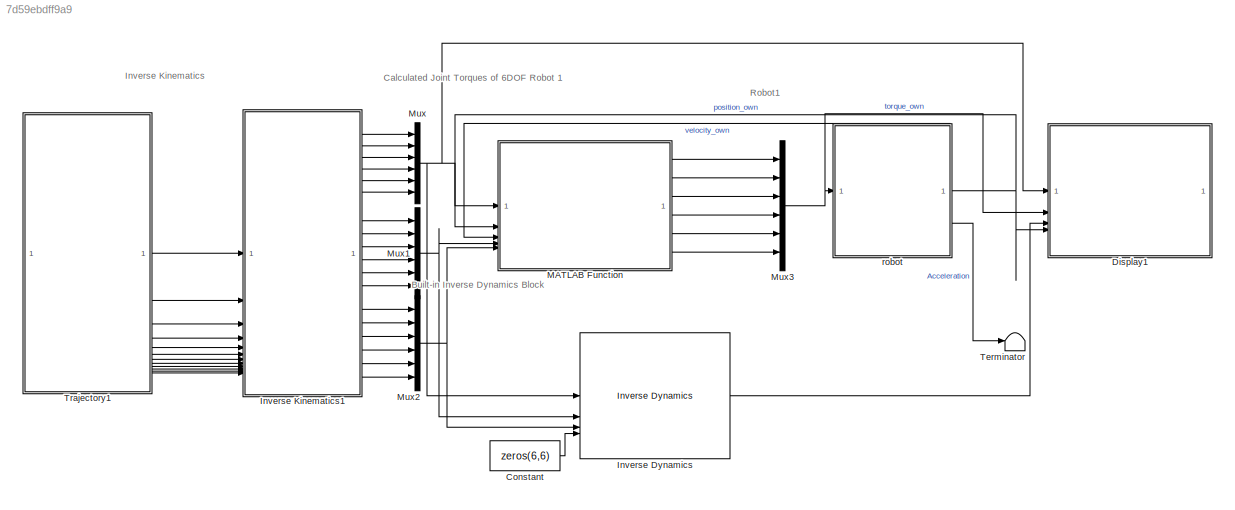
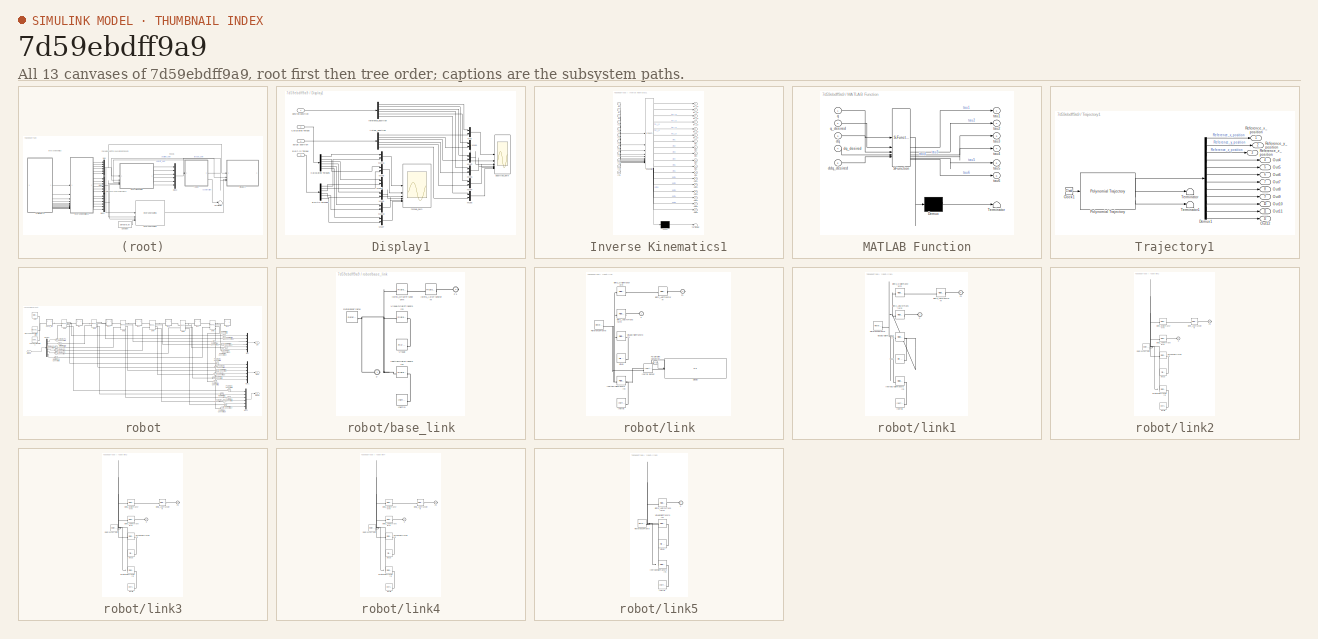
[diagram: thumbnail index - all 13 canvases of the model, root first then tree order]
MODEL slx_7d59ebdff9a9
KIND model
CONFIG AbsTol = auto
CONFIG EnableMultiTasking = off
CONFIG FixedStep = auto
CONFIG MaxStep = auto
CONFIG MinStep = auto
CONFIG RelTol = 1e-5
CONFIG SampleTimeConstraint = Unconstrained
CONFIG SolverName = VariableStepAuto
CONFIG StartTime = 0.0
CONFIG StopTime = 10.0
BLOCK [Constant] Constant
  Value = zeros(6,6)
BLOCK [SubSystem] Display1
BLOCK [Demux] Display1/Actual_position
  Outputs = 6
BLOCK [Inport] Display1/Built-in Torque
  Port = 3
BLOCK [Demux] Display1/Bulitin Torques
  Outputs = 6
BLOCK [Inport] Display1/Calculated Torque
  Port = 2
BLOCK [Demux] Display1/Calculated Torques
  Outputs = 6
BLOCK [Mux] Display1/Mux
  DisplayOption = bar
  Inputs = 2
BLOCK [Mux] Display1/Mux1
  DisplayOption = bar
  Inputs = 2
BLOCK [Mux] Display1/Mux10
  DisplayOption = bar
  Inputs = 2
BLOCK [Mux] Display1/Mux11
  DisplayOption = bar
  Inputs = 2
BLOCK [Mux] Display1/Mux2
  DisplayOption = bar
  Inputs = 2
BLOCK [Mux] Display1/Mux3
  DisplayOption = bar
  Inputs = 2
BLOCK [Mux] Display1/Mux4
  DisplayOption = bar
  Inputs = 2
BLOCK [Mux] Display1/Mux5
  DisplayOption = bar
  Inputs = 2
BLOCK [Mux] Display1/Mux6
  DisplayOption = bar
  Inputs = 2
BLOCK [Mux] Display1/Mux7
  DisplayOption = bar
  Inputs = 2
BLOCK [Mux] Display1/Mux8
  DisplayOption = bar
  Inputs = 2
BLOCK [Mux] Display1/Mux9
  DisplayOption = bar
  Inputs = 2
BLOCK [Inport] Display1/actual position
  Port = 4
BLOCK [Inport] Display1/desired position
BLOCK [Scope] Display1/position_own
  Floating = off
  NumInputPorts = 6
  ScopeSpecificationString = Simulink.scopes.TimeScopeBlockCfg('CurrentConfiguration', extmgr.ConfigurationSet(extmgr.Configuration('Core','General UI',true,'FigureColor',[1 1 1]),extmgr.Configuration('Core','Source UI',true),extmgr.Configuration('Sources','WiredSimulink',true,'DataLoggingVariableName','ScopeData1'),extmgr.Configuration('Visuals','Time Domain',true,'SerializedDisplays',{struct('MinYLimReal','-0.48797','MaxYLi...<+6614ch>
BLOCK [Demux] Display1/reference_position
  Outputs = 6
BLOCK [Scope] Display1/torque_own
  Floating = off
  NumInputPorts = 6
  ScopeSpecificationString = Simulink.scopes.TimeScopeBlockCfg('CurrentConfiguration', extmgr.ConfigurationSet(extmgr.Configuration('Core','General UI',true,'FigureColor',[1 1 1]),extmgr.Configuration('Core','Source UI',true),extmgr.Configuration('Sources','WiredSimulink',true),extmgr.Configuration('Visuals','Time Domain',true,'SerializedDisplays',{struct('MinYLimReal','-11.94277','MaxYLimReal','15.29591','YLabelReal','','Min...<+6554ch>
BLOCK [Reference] Inverse Dynamics  REF=robotmaniplib/Inverse Dynamics
  SourceBlock = robotmaniplib/Inverse Dynamics
  SourceType = Inverse Dynamics
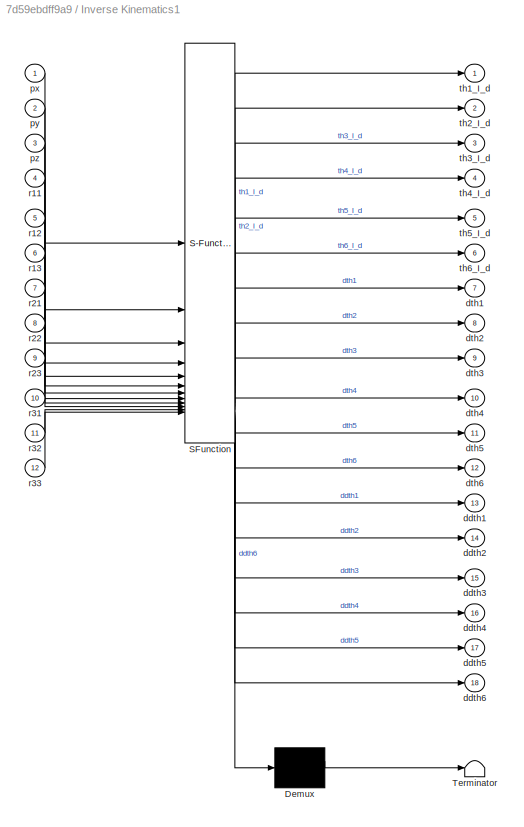
BLOCK [SubSystem] Inverse Kinematics1
  ErrorFcn = Stateflow.Translate.translate
  PermitHierarchicalResolution = ExplicitOnly
  SFBlockType = MATLAB Function
  TreatAsAtomicUnit = on
BLOCK [Demux] Inverse Kinematics1/ Demux 
  Outputs = 1
BLOCK [S-Function] Inverse Kinematics1/ SFunction 
  EnableBusSupport = off
  FunctionName = sf_sfun
  PortCounts = [12 19]
  SFcnIsStateOwnerBlock = off
  SFunctionDeploymentMode = off
  Tag = Stateflow S-Function 1
BLOCK [Terminator] Inverse Kinematics1/ Terminator 
BLOCK [Outport] Inverse Kinematics1/ddth1
  Port = 13
BLOCK [Outport] Inverse Kinematics1/ddth2
  Port = 14
BLOCK [Outport] Inverse Kinematics1/ddth3
  Port = 15
BLOCK [Outport] Inverse Kinematics1/ddth4
  Port = 16
BLOCK [Outport] Inverse Kinematics1/ddth5
  Port = 17
BLOCK [Outport] Inverse Kinematics1/ddth6
  Port = 18
BLOCK [Outport] Inverse Kinematics1/dth1
  Port = 7
BLOCK [Outport] Inverse Kinematics1/dth2
  Port = 8
BLOCK [Outport] Inverse Kinematics1/dth3
  Port = 9
BLOCK [Outport] Inverse Kinematics1/dth4
  Port = 10
BLOCK [Outport] Inverse Kinematics1/dth5
  Port = 11
BLOCK [Outport] Inverse Kinematics1/dth6
  Port = 12
BLOCK [Inport] Inverse Kinematics1/px
BLOCK [Inport] Inverse Kinematics1/py
  Port = 2
BLOCK [Inport] Inverse Kinematics1/pz
  Port = 3
BLOCK [Inport] Inverse Kinematics1/r11
  Port = 4
BLOCK [Inport] Inverse Kinematics1/r12
  Port = 5
BLOCK [Inport] Inverse Kinematics1/r13
  Port = 6
BLOCK [Inport] Inverse Kinematics1/r21
  Port = 7
BLOCK [Inport] Inverse Kinematics1/r22
  Port = 8
BLOCK [Inport] Inverse Kinematics1/r23
  Port = 9
BLOCK [Inport] Inverse Kinematics1/r31
  Port = 10
BLOCK [Inport] Inverse Kinematics1/r32
  Port = 11
BLOCK [Inport] Inverse Kinematics1/r33
  Port = 12
BLOCK [Outport] Inverse Kinematics1/th1_I_d
BLOCK [Outport] Inverse Kinematics1/th2_I_d
  Port = 2
BLOCK [Outport] Inverse Kinematics1/th3_I_d
  Port = 3
BLOCK [Outport] Inverse Kinematics1/th4_I_d
  Port = 4
BLOCK [Outport] Inverse Kinematics1/th5_I_d
  Port = 5
BLOCK [Outport] Inverse Kinematics1/th6_I_d
  Port = 6
BLOCK [SubSystem] MATLAB Function
  ErrorFcn = Stateflow.Translate.translate
  PermitHierarchicalResolution = ExplicitOnly
  SFBlockType = MATLAB Function
  TreatAsAtomicUnit = on
BLOCK [Demux] MATLAB Function/ Demux 
  Outputs = 1
BLOCK [S-Function] MATLAB Function/ SFunction 
  EnableBusSupport = off
  FunctionName = sf_sfun
  PortCounts = [5 7]
  SFcnIsStateOwnerBlock = off
  SFunctionDeploymentMode = off
  Tag = Stateflow S-Function 9
BLOCK [Terminator] MATLAB Function/ Terminator 
BLOCK [Inport] MATLAB Function/ddq_desired
  Port = 5
BLOCK [Inport] MATLAB Function/dq
  Port = 3
BLOCK [Inport] MATLAB Function/dq_desired
  Port = 4
BLOCK [Inport] MATLAB Function/q
BLOCK [Inport] MATLAB Function/q_desired
  Port = 2
BLOCK [Outport] MATLAB Function/tau1
BLOCK [Outport] MATLAB Function/tau2
  Port = 2
BLOCK [Outport] MATLAB Function/tau3
  Port = 3
BLOCK [Outport] MATLAB Function/tau4
  Port = 4
BLOCK [Outport] MATLAB Function/tau5
  Port = 5
BLOCK [Outport] MATLAB Function/tau6
  Port = 6
BLOCK [Mux] Mux
  DisplayOption = bar
  Inputs = 6
BLOCK [Mux] Mux1
  DisplayOption = bar
  Inputs = 6
BLOCK [Mux] Mux2
  DisplayOption = bar
  Inputs = 6
BLOCK [Mux] Mux3
  DisplayOption = bar
  Inputs = 6
BLOCK [Terminator] Terminator
BLOCK [SubSystem] Trajectory1
BLOCK [Clock] Trajectory1/Clock1
  Decimation = 14
BLOCK [Demux] Trajectory1/Demux1
  Outputs = 12
BLOCK [Outport] Trajectory1/Out10
  Port = 10
BLOCK [Outport] Trajectory1/Out11
  Port = 11
BLOCK [Outport] Trajectory1/Out12
  Port = 12
BLOCK [Outport] Trajectory1/Out4
  Port = 4
BLOCK [Outport] Trajectory1/Out5
  Port = 5
BLOCK [Outport] Trajectory1/Out6
  Port = 6
BLOCK [Outport] Trajectory1/Out7
  Port = 7
BLOCK [Outport] Trajectory1/Out8
  Port = 8
BLOCK [Outport] Trajectory1/Out9
  Port = 9
BLOCK [Reference] Trajectory1/Polynomial Trajectory  REF=robotcorelib/Polynomial Trajectory
  SourceBlock = robotcorelib/Polynomial Trajectory
  SourceType = robotics.slcore.internal.block.PolyTrajSys
BLOCK [Outport] Trajectory1/Reference_x_position
BLOCK [Outport] Trajectory1/Reference_y_position
  Port = 2
BLOCK [Outport] Trajectory1/Reference_z_position
  Port = 3
BLOCK [Terminator] Trajectory1/Terminator
BLOCK [Terminator] Trajectory1/Terminator1
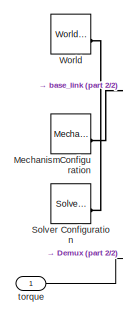
[diagram: robot - part 1/2, top left region]
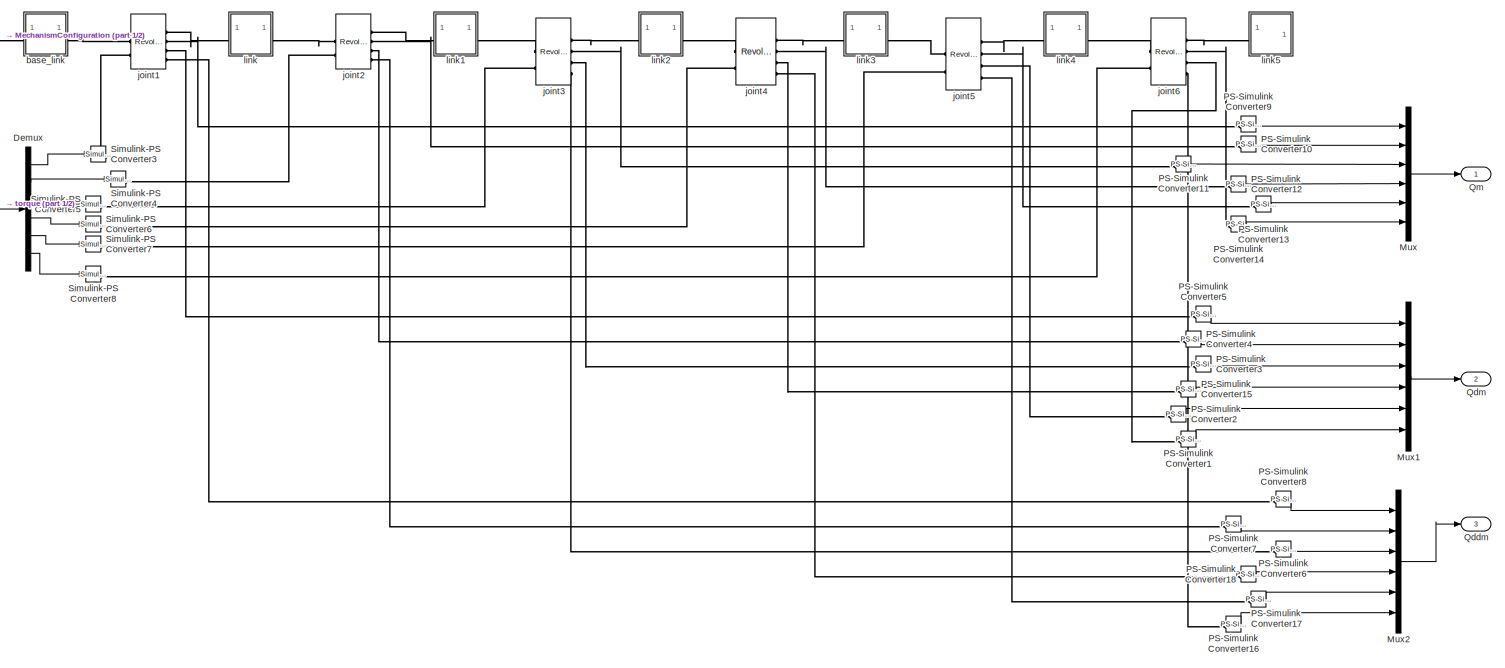
[diagram: robot - part 2/2, most of the canvas]
BLOCK [SubSystem] robot
BLOCK [Demux] robot/Demux
  Outputs = 6
BLOCK [Reference] robot/MechanismConfiguration  REF=sm_lib/Utilities/Mechanism
Configuration
  SourceBlock = sm_lib/Utilities/Mechanism\nConfiguration
  SourceType = Mechanism\nConfiguration
BLOCK [Mux] robot/Mux
  DisplayOption = bar
  Inputs = 6
BLOCK [Mux] robot/Mux1
  DisplayOption = bar
  Inputs = 6
BLOCK [Mux] robot/Mux2
  DisplayOption = bar
  Inputs = 6
BLOCK [Reference] robot/PS-Simulink Converter1  REF=nesl_utility/PS-Simulink
Converter
  SourceBlock = nesl_utility/PS-Simulink\nConverter
  SourceType = PS-Simulink\nConverter
BLOCK [Reference] robot/PS-Simulink Converter10  REF=nesl_utility/PS-Simulink
Converter
  SourceBlock = nesl_utility/PS-Simulink\nConverter
  SourceType = PS-Simulink\nConverter
BLOCK [Reference] robot/PS-Simulink Converter11  REF=nesl_utility/PS-Simulink
Converter
  SourceBlock = nesl_utility/PS-Simulink\nConverter
  SourceType = PS-Simulink\nConverter
BLOCK [Reference] robot/PS-Simulink Converter12  REF=nesl_utility/PS-Simulink
Converter
  SourceBlock = nesl_utility/PS-Simulink\nConverter
  SourceType = PS-Simulink\nConverter
BLOCK [Reference] robot/PS-Simulink Converter13  REF=nesl_utility/PS-Simulink
Converter
  SourceBlock = nesl_utility/PS-Simulink\nConverter
  SourceType = PS-Simulink\nConverter
BLOCK [Reference] robot/PS-Simulink Converter14  REF=nesl_utility/PS-Simulink
Converter
  SourceBlock = nesl_utility/PS-Simulink\nConverter
  SourceType = PS-Simulink\nConverter
BLOCK [Reference] robot/PS-Simulink Converter15  REF=nesl_utility/PS-Simulink
Converter
  SourceBlock = nesl_utility/PS-Simulink\nConverter
  SourceType = PS-Simulink\nConverter
BLOCK [Reference] robot/PS-Simulink Converter16  REF=nesl_utility/PS-Simulink
Converter
  SourceBlock = nesl_utility/PS-Simulink\nConverter
  SourceType = PS-Simulink\nConverter
BLOCK [Reference] robot/PS-Simulink Converter17  REF=nesl_utility/PS-Simulink
Converter
  SourceBlock = nesl_utility/PS-Simulink\nConverter
  SourceType = PS-Simulink\nConverter
BLOCK [Reference] robot/PS-Simulink Converter18  REF=nesl_utility/PS-Simulink
Converter
  SourceBlock = nesl_utility/PS-Simulink\nConverter
  SourceType = PS-Simulink\nConverter
BLOCK [Reference] robot/PS-Simulink Converter2  REF=nesl_utility/PS-Simulink
Converter
  SourceBlock = nesl_utility/PS-Simulink\nConverter
  SourceType = PS-Simulink\nConverter
BLOCK [Reference] robot/PS-Simulink Converter3  REF=nesl_utility/PS-Simulink
Converter
  SourceBlock = nesl_utility/PS-Simulink\nConverter
  SourceType = PS-Simulink\nConverter
BLOCK [Reference] robot/PS-Simulink Converter4  REF=nesl_utility/PS-Simulink
Converter
  SourceBlock = nesl_utility/PS-Simulink\nConverter
  SourceType = PS-Simulink\nConverter
BLOCK [Reference] robot/PS-Simulink Converter5  REF=nesl_utility/PS-Simulink
Converter
  SourceBlock = nesl_utility/PS-Simulink\nConverter
  SourceType = PS-Simulink\nConverter
BLOCK [Reference] robot/PS-Simulink Converter6  REF=nesl_utility/PS-Simulink
Converter
  SourceBlock = nesl_utility/PS-Simulink\nConverter
  SourceType = PS-Simulink\nConverter
BLOCK [Reference] robot/PS-Simulink Converter7  REF=nesl_utility/PS-Simulink
Converter
  SourceBlock = nesl_utility/PS-Simulink\nConverter
  SourceType = PS-Simulink\nConverter
BLOCK [Reference] robot/PS-Simulink Converter8  REF=nesl_utility/PS-Simulink
Converter
  SourceBlock = nesl_utility/PS-Simulink\nConverter
  SourceType = PS-Simulink\nConverter
BLOCK [Reference] robot/PS-Simulink Converter9  REF=nesl_utility/PS-Simulink
Converter
  SourceBlock = nesl_utility/PS-Simulink\nConverter
  SourceType = PS-Simulink\nConverter
BLOCK [Outport] robot/Qddm
  Port = 3
BLOCK [Outport] robot/Qdm
  Port = 2
BLOCK [Outport] robot/Qm
BLOCK [Reference] robot/Simulink-PS Converter3  REF=nesl_utility/Simulink-PS
Converter
  SourceBlock = nesl_utility/Simulink-PS\nConverter
  SourceType = Simulink-PS\nConverter
BLOCK [Reference] robot/Simulink-PS Converter4  REF=nesl_utility/Simulink-PS
Converter
  SourceBlock = nesl_utility/Simulink-PS\nConverter
  SourceType = Simulink-PS\nConverter
BLOCK [Reference] robot/Simulink-PS Converter5  REF=nesl_utility/Simulink-PS
Converter
  SourceBlock = nesl_utility/Simulink-PS\nConverter
  SourceType = Simulink-PS\nConverter
BLOCK [Reference] robot/Simulink-PS Converter6  REF=nesl_utility/Simulink-PS
Converter
  SourceBlock = nesl_utility/Simulink-PS\nConverter
  SourceType = Simulink-PS\nConverter
BLOCK [Reference] robot/Simulink-PS Converter7  REF=nesl_utility/Simulink-PS
Converter
  SourceBlock = nesl_utility/Simulink-PS\nConverter
  SourceType = Simulink-PS\nConverter
BLOCK [Reference] robot/Simulink-PS Converter8  REF=nesl_utility/Simulink-PS
Converter
  SourceBlock = nesl_utility/Simulink-PS\nConverter
  SourceType = Simulink-PS\nConverter
BLOCK [Reference] robot/Solver Configuration  REF=nesl_utility/Solver
Configuration
  SourceBlock = nesl_utility/Solver\nConfiguration
  SourceType = Solver\nConfiguration
BLOCK [Reference] robot/World  REF=sm_lib/Frames and
Transforms/World Frame
  SourceBlock = sm_lib/Frames and\nTransforms/World Frame
  SourceType = World Frame
BLOCK [SubSystem] robot/base_link
BLOCK [PMIOPort] robot/base_link/F
  Side = Left
BLOCK [PMIOPort] robot/base_link/F1
  Port = 2
  Side = Right
BLOCK [Reference] robot/base_link/Inertia  REF=sm_lib/Body Elements/Inertia
  SourceBlock = sm_lib/Body Elements/Inertia
  SourceType = Inertia
BLOCK [Reference] robot/base_link/InertiaOriginTransform  REF=sm_lib/Frames and
Transforms/Rigid
Transform
  SourceBlock = sm_lib/Frames and\nTransforms/Rigid\nTransform
  SourceType = Rigid\nTransform
BLOCK [Reference] robot/base_link/ReferenceFrame  REF=sm_lib/Frames and
Transforms/Reference
Frame
  SourceBlock = sm_lib/Frames and\nTransforms/Reference\nFrame
  SourceType = Reference\nFrame
BLOCK [Reference] robot/base_link/Visual  REF=sm_lib/Body Elements/File Solid
  SourceBlock = sm_lib/Body Elements/File Solid
  SourceType = File Solid
BLOCK [Reference] robot/base_link/VisualOriginTransform  REF=sm_lib/Frames and
Transforms/Rigid
Transform
  SourceBlock = sm_lib/Frames and\nTransforms/Rigid\nTransform
  SourceType = Rigid\nTransform
BLOCK [Reference] robot/base_link/joint1_AxisTransform  REF=sm_lib/Frames and
Transforms/Rigid
Transform
  SourceBlock = sm_lib/Frames and\nTransforms/Rigid\nTransform
  SourceType = Rigid\nTransform
BLOCK [Reference] robot/base_link/joint1_OriginTransform  REF=sm_lib/Frames and
Transforms/Rigid
Transform
  SourceBlock = sm_lib/Frames and\nTransforms/Rigid\nTransform
  SourceType = Rigid\nTransform
BLOCK [Reference] robot/joint1  REF=sm_lib/Joints/Revolute Joint
  SourceBlock = sm_lib/Joints/Revolute Joint
  SourceType = Revolute Joint
BLOCK [Reference] robot/joint2  REF=sm_lib/Joints/Revolute Joint
  SourceBlock = sm_lib/Joints/Revolute Joint
  SourceType = Revolute Joint
BLOCK [Reference] robot/joint3  REF=sm_lib/Joints/Revolute Joint
  SourceBlock = sm_lib/Joints/Revolute Joint
  SourceType = Revolute Joint
BLOCK [Reference] robot/joint4  REF=sm_lib/Joints/Revolute Joint
  SourceBlock = sm_lib/Joints/Revolute Joint
  SourceType = Revolute Joint
BLOCK [Reference] robot/joint5  REF=sm_lib/Joints/Revolute Joint
  SourceBlock = sm_lib/Joints/Revolute Joint
  SourceType = Revolute Joint
BLOCK [Reference] robot/joint6  REF=sm_lib/Joints/Revolute Joint
  SourceBlock = sm_lib/Joints/Revolute Joint
  SourceType = Revolute Joint
BLOCK [SubSystem] robot/link
BLOCK [Display] robot/link/Display
  Decimation = 1
BLOCK [PMIOPort] robot/link/F
  Side = Left
BLOCK [PMIOPort] robot/link/F1
  Port = 2
  Side = Right
BLOCK [Reference] robot/link/Inertia  REF=sm_lib/Body Elements/Inertia
  SourceBlock = sm_lib/Body Elements/Inertia
  SourceType = Inertia
BLOCK [Reference] robot/link/Inertia Sensor  REF=sm_lib/Body Elements/Inertia Sensor
  SourceBlock = sm_lib/Body Elements/Inertia Sensor
  SourceType = Inertia Sensor
BLOCK [Reference] robot/link/InertiaOriginTransform  REF=sm_lib/Frames and
Transforms/Rigid
Transform
  SourceBlock = sm_lib/Frames and\nTransforms/Rigid\nTransform
  SourceType = Rigid\nTransform
BLOCK [Reference] robot/link/PS-Simulink Converter  REF=nesl_utility/PS-Simulink
Converter
  SourceBlock = nesl_utility/PS-Simulink\nConverter
  SourceType = PS-Simulink\nConverter
BLOCK [Reference] robot/link/ReferenceFrame  REF=sm_lib/Frames and
Transforms/Reference
Frame
  SourceBlock = sm_lib/Frames and\nTransforms/Reference\nFrame
  SourceType = Reference\nFrame
BLOCK [Reference] robot/link/Visual  REF=sm_lib/Body Elements/File Solid
  SourceBlock = sm_lib/Body Elements/File Solid
  SourceType = File Solid
BLOCK [Reference] robot/link/VisualOriginTransform  REF=sm_lib/Frames and
Transforms/Rigid
Transform
  SourceBlock = sm_lib/Frames and\nTransforms/Rigid\nTransform
  SourceType = Rigid\nTransform
BLOCK [Reference] robot/link/joint1_AxisInvTransform  REF=sm_lib/Frames and
Transforms/Rigid
Transform
  SourceBlock = sm_lib/Frames and\nTransforms/Rigid\nTransform
  SourceType = Rigid\nTransform
BLOCK [Reference] robot/link/joint2_AxisTransform  REF=sm_lib/Frames and
Transforms/Rigid
Transform
  SourceBlock = sm_lib/Frames and\nTransforms/Rigid\nTransform
  SourceType = Rigid\nTransform
BLOCK [Reference] robot/link/joint2_OriginTransform  REF=sm_lib/Frames and
Transforms/Rigid
Transform
  SourceBlock = sm_lib/Frames and\nTransforms/Rigid\nTransform
  SourceType = Rigid\nTransform
BLOCK [SubSystem] robot/link1
BLOCK [PMIOPort] robot/link1/F
  Side = Left
BLOCK [PMIOPort] robot/link1/F1
  Port = 2
  Side = Right
BLOCK [Reference] robot/link1/Inertia  REF=sm_lib/Body Elements/Inertia
  SourceBlock = sm_lib/Body Elements/Inertia
  SourceType = Inertia
BLOCK [Reference] robot/link1/InertiaOriginTransform  REF=sm_lib/Frames and
Transforms/Rigid
Transform
  SourceBlock = sm_lib/Frames and\nTransforms/Rigid\nTransform
  SourceType = Rigid\nTransform
BLOCK [Reference] robot/link1/ReferenceFrame  REF=sm_lib/Frames and
Transforms/Reference
Frame
  SourceBlock = sm_lib/Frames and\nTransforms/Reference\nFrame
  SourceType = Reference\nFrame
BLOCK [Reference] robot/link1/Visual  REF=sm_lib/Body Elements/File Solid
  SourceBlock = sm_lib/Body Elements/File Solid
  SourceType = File Solid
BLOCK [Reference] robot/link1/VisualOriginTransform  REF=sm_lib/Frames and
Transforms/Rigid
Transform
  SourceBlock = sm_lib/Frames and\nTransforms/Rigid\nTransform
  SourceType = Rigid\nTransform
BLOCK [Reference] robot/link1/joint2_AxisInvTransform  REF=sm_lib/Frames and
Transforms/Rigid
Transform
  SourceBlock = sm_lib/Frames and\nTransforms/Rigid\nTransform
  SourceType = Rigid\nTransform
BLOCK [Reference] robot/link1/joint3_AxisTransform  REF=sm_lib/Frames and
Transforms/Rigid
Transform
  SourceBlock = sm_lib/Frames and\nTransforms/Rigid\nTransform
  SourceType = Rigid\nTransform
BLOCK [Reference] robot/link1/joint3_OriginTransform  REF=sm_lib/Frames and
Transforms/Rigid
Transform
  SourceBlock = sm_lib/Frames and\nTransforms/Rigid\nTransform
  SourceType = Rigid\nTransform
BLOCK [SubSystem] robot/link2
BLOCK [PMIOPort] robot/link2/F
  Side = Left
BLOCK [PMIOPort] robot/link2/F1
  Port = 2
  Side = Right
BLOCK [Reference] robot/link2/Inertia  REF=sm_lib/Body Elements/Inertia
  SourceBlock = sm_lib/Body Elements/Inertia
  SourceType = Inertia
BLOCK [Reference] robot/link2/InertiaOriginTransform  REF=sm_lib/Frames and
Transforms/Rigid
Transform
  SourceBlock = sm_lib/Frames and\nTransforms/Rigid\nTransform
  SourceType = Rigid\nTransform
BLOCK [Reference] robot/link2/ReferenceFrame  REF=sm_lib/Frames and
Transforms/Reference
Frame
  SourceBlock = sm_lib/Frames and\nTransforms/Reference\nFrame
  SourceType = Reference\nFrame
BLOCK [Reference] robot/link2/Visual  REF=sm_lib/Body Elements/File Solid
  SourceBlock = sm_lib/Body Elements/File Solid
  SourceType = File Solid
BLOCK [Reference] robot/link2/VisualOriginTransform  REF=sm_lib/Frames and
Transforms/Rigid
Transform
  SourceBlock = sm_lib/Frames and\nTransforms/Rigid\nTransform
  SourceType = Rigid\nTransform
BLOCK [Reference] robot/link2/joint3_AxisInvTransform  REF=sm_lib/Frames and
Transforms/Rigid
Transform
  SourceBlock = sm_lib/Frames and\nTransforms/Rigid\nTransform
  SourceType = Rigid\nTransform
BLOCK [Reference] robot/link2/joint4_AxisTransform  REF=sm_lib/Frames and
Transforms/Rigid
Transform
  SourceBlock = sm_lib/Frames and\nTransforms/Rigid\nTransform
  SourceType = Rigid\nTransform
BLOCK [Reference] robot/link2/joint4_OriginTransform  REF=sm_lib/Frames and
Transforms/Rigid
Transform
  SourceBlock = sm_lib/Frames and\nTransforms/Rigid\nTransform
  SourceType = Rigid\nTransform
BLOCK [SubSystem] robot/link3
BLOCK [PMIOPort] robot/link3/F
  Side = Left
BLOCK [PMIOPort] robot/link3/F1
  Port = 2
  Side = Right
BLOCK [Reference] robot/link3/Inertia  REF=sm_lib/Body Elements/Inertia
  SourceBlock = sm_lib/Body Elements/Inertia
  SourceType = Inertia
BLOCK [Reference] robot/link3/InertiaOriginTransform  REF=sm_lib/Frames and
Transforms/Rigid
Transform
  SourceBlock = sm_lib/Frames and\nTransforms/Rigid\nTransform
  SourceType = Rigid\nTransform
BLOCK [Reference] robot/link3/ReferenceFrame  REF=sm_lib/Frames and
Transforms/Reference
Frame
  SourceBlock = sm_lib/Frames and\nTransforms/Reference\nFrame
  SourceType = Reference\nFrame
BLOCK [Reference] robot/link3/Visual  REF=sm_lib/Body Elements/File Solid
  SourceBlock = sm_lib/Body Elements/File Solid
  SourceType = File Solid
BLOCK [Reference] robot/link3/VisualOriginTransform  REF=sm_lib/Frames and
Transforms/Rigid
Transform
  SourceBlock = sm_lib/Frames and\nTransforms/Rigid\nTransform
  SourceType = Rigid\nTransform
BLOCK [Reference] robot/link3/joint4_AxisInvTransform  REF=sm_lib/Frames and
Transforms/Rigid
Transform
  SourceBlock = sm_lib/Frames and\nTransforms/Rigid\nTransform
  SourceType = Rigid\nTransform
BLOCK [Reference] robot/link3/joint5_AxisTransform  REF=sm_lib/Frames and
Transforms/Rigid
Transform
  SourceBlock = sm_lib/Frames and\nTransforms/Rigid\nTransform
  SourceType = Rigid\nTransform
BLOCK [Reference] robot/link3/joint5_OriginTransform  REF=sm_lib/Frames and
Transforms/Rigid
Transform
  SourceBlock = sm_lib/Frames and\nTransforms/Rigid\nTransform
  SourceType = Rigid\nTransform
BLOCK [SubSystem] robot/link4
BLOCK [PMIOPort] robot/link4/F
  Side = Left
BLOCK [PMIOPort] robot/link4/F1
  Port = 2
  Side = Right
BLOCK [Reference] robot/link4/Inertia  REF=sm_lib/Body Elements/Inertia
  SourceBlock = sm_lib/Body Elements/Inertia
  SourceType = Inertia
BLOCK [Reference] robot/link4/InertiaOriginTransform  REF=sm_lib/Frames and
Transforms/Rigid
Transform
  SourceBlock = sm_lib/Frames and\nTransforms/Rigid\nTransform
  SourceType = Rigid\nTransform
BLOCK [Reference] robot/link4/ReferenceFrame  REF=sm_lib/Frames and
Transforms/Reference
Frame
  SourceBlock = sm_lib/Frames and\nTransforms/Reference\nFrame
  SourceType = Reference\nFrame
BLOCK [Reference] robot/link4/Visual  REF=sm_lib/Body Elements/File Solid
  SourceBlock = sm_lib/Body Elements/File Solid
  SourceType = File Solid
BLOCK [Reference] robot/link4/VisualOriginTransform  REF=sm_lib/Frames and
Transforms/Rigid
Transform
  SourceBlock = sm_lib/Frames and\nTransforms/Rigid\nTransform
  SourceType = Rigid\nTransform
BLOCK [Reference] robot/link4/joint5_AxisInvTransform  REF=sm_lib/Frames and
Transforms/Rigid
Transform
  SourceBlock = sm_lib/Frames and\nTransforms/Rigid\nTransform
  SourceType = Rigid\nTransform
BLOCK [Reference] robot/link4/joint6_AxisTransform  REF=sm_lib/Frames and
Transforms/Rigid
Transform
  SourceBlock = sm_lib/Frames and\nTransforms/Rigid\nTransform
  SourceType = Rigid\nTransform
BLOCK [Reference] robot/link4/joint6_OriginTransform  REF=sm_lib/Frames and
Transforms/Rigid
Transform
  SourceBlock = sm_lib/Frames and\nTransforms/Rigid\nTransform
  SourceType = Rigid\nTransform
BLOCK [SubSystem] robot/link5
BLOCK [PMIOPort] robot/link5/F
  Side = Left
BLOCK [Reference] robot/link5/Inertia  REF=sm_lib/Body Elements/Inertia
  SourceBlock = sm_lib/Body Elements/Inertia
  SourceType = Inertia
BLOCK [Reference] robot/link5/InertiaOriginTransform  REF=sm_lib/Frames and
Transforms/Rigid
Transform
  SourceBlock = sm_lib/Frames and\nTransforms/Rigid\nTransform
  SourceType = Rigid\nTransform
BLOCK [Reference] robot/link5/ReferenceFrame  REF=sm_lib/Frames and
Transforms/Reference
Frame
  SourceBlock = sm_lib/Frames and\nTransforms/Reference\nFrame
  SourceType = Reference\nFrame
BLOCK [Reference] robot/link5/Visual  REF=sm_lib/Body Elements/File Solid
  SourceBlock = sm_lib/Body Elements/File Solid
  SourceType = File Solid
BLOCK [Reference] robot/link5/VisualOriginTransform  REF=sm_lib/Frames and
Transforms/Rigid
Transform
  SourceBlock = sm_lib/Frames and\nTransforms/Rigid\nTransform
  SourceType = Rigid\nTransform
BLOCK [Reference] robot/link5/joint6_AxisInvTransform  REF=sm_lib/Frames and
Transforms/Rigid
Transform
  SourceBlock = sm_lib/Frames and\nTransforms/Rigid\nTransform
  SourceType = Rigid\nTransform
BLOCK [Inport] robot/torque
ANNOTATION (root): Built-in Inverse Dynamics Block
ANNOTATION (root): Calculated Joint Torques of 6DOF Robot 1
ANNOTATION (root): Inverse Kinematics
ANNOTATION (root): Robot1
LINE Constant:1 -> Inverse Dynamics:4
LINE Display1/Actual_position:1 -> Display1/Mux:2
LINE Display1/Actual_position:2 -> Display1/Mux1:2
LINE Display1/Actual_position:3 -> Display1/Mux2:2
LINE Display1/Actual_position:4 -> Display1/Mux3:2
LINE Display1/Actual_position:5 -> Display1/Mux4:2
LINE Display1/Actual_position:6 -> Display1/Mux5:2
LINE Display1/Built-in Torque:1 -> Display1/Bulitin Torques:1
LINE Display1/Bulitin Torques:1 -> Display1/Mux11:2
LINE Display1/Bulitin Torques:2 -> Display1/Mux8:2
LINE Display1/Bulitin Torques:3 -> Display1/Mux6:2
LINE Display1/Bulitin Torques:4 -> Display1/Mux9:2
LINE Display1/Bulitin Torques:5 -> Display1/Mux10:2
LINE Display1/Bulitin Torques:6 -> Display1/Mux7:2
LINE Display1/Calculated Torque:1 -> Display1/Calculated Torques:1
LINE Display1/Calculated Torques:1 -> Display1/Mux11:1
LINE Display1/Calculated Torques:2 -> Display1/Mux8:1
LINE Display1/Calculated Torques:3 -> Display1/Mux6:1
LINE Display1/Calculated Torques:4 -> Display1/Mux9:1
LINE Display1/Calculated Torques:5 -> Display1/Mux10:1
LINE Display1/Calculated Torques:6 -> Display1/Mux7:1
LINE Display1/Mux10:1 -> Display1/torque_own:5
LINE Display1/Mux11:1 -> Display1/torque_own:1
LINE Display1/Mux1:1 -> Display1/position_own:2
LINE Display1/Mux2:1 -> Display1/position_own:3
LINE Display1/Mux3:1 -> Display1/position_own:4
LINE Display1/Mux4:1 -> Display1/position_own:5
LINE Display1/Mux5:1 -> Display1/position_own:6
LINE Display1/Mux6:1 -> Display1/torque_own:3
LINE Display1/Mux7:1 -> Display1/torque_own:6
LINE Display1/Mux8:1 -> Display1/torque_own:2
LINE Display1/Mux9:1 -> Display1/torque_own:4
LINE Display1/Mux:1 -> Display1/position_own:1
LINE Display1/actual position:1 -> Display1/Actual_position:1
LINE Display1/desired position:1 -> Display1/reference_position:1
LINE Display1/reference_position:1 -> Display1/Mux:1
LINE Display1/reference_position:2 -> Display1/Mux1:1
LINE Display1/reference_position:3 -> Display1/Mux2:1
LINE Display1/reference_position:4 -> Display1/Mux3:1
LINE Display1/reference_position:5 -> Display1/Mux4:1
LINE Display1/reference_position:6 -> Display1/Mux5:1
LINE Inverse Dynamics:1 -> Display1:3
LINE Inverse Kinematics1:1 -> Mux:1
LINE Inverse Kinematics1:10 -> Mux1:4
LINE Inverse Kinematics1:11 -> Mux1:5
LINE Inverse Kinematics1:12 -> Mux1:6
LINE Inverse Kinematics1:13 -> Mux2:1
LINE Inverse Kinematics1:14 -> Mux2:2
LINE Inverse Kinematics1:15 -> Mux2:3
LINE Inverse Kinematics1:16 -> Mux2:4
LINE Inverse Kinematics1:17 -> Mux2:5
LINE Inverse Kinematics1:18 -> Mux2:6
LINE Inverse Kinematics1:2 -> Mux:2
LINE Inverse Kinematics1:3 -> Mux:3
LINE Inverse Kinematics1:4 -> Mux:4
LINE Inverse Kinematics1:5 -> Mux:5
LINE Inverse Kinematics1:6 -> Mux:6
LINE Inverse Kinematics1:7 -> Mux1:1
LINE Inverse Kinematics1:8 -> Mux1:2
LINE Inverse Kinematics1:9 -> Mux1:3
LINE MATLAB Function:1 -> Mux3:1
LINE MATLAB Function:2 -> Mux3:2
LINE MATLAB Function:3 -> Mux3:3
LINE MATLAB Function:4 -> Mux3:4
LINE MATLAB Function:5 -> Mux3:5
LINE MATLAB Function:6 -> Mux3:6
NET Mux1:1 -> Inverse Dynamics:2, MATLAB Function:4
NET Mux2:1 -> Inverse Dynamics:3, MATLAB Function:5
NET Mux3:1 -> Display1:2, robot:1
NET Mux:1 -> Display1:1, Inverse Dynamics:1, MATLAB Function:2
LINE Trajectory1/Clock1:1 -> Trajectory1/Polynomial Trajectory:1
LINE Trajectory1/Demux1:1 -> Trajectory1/Reference_x_position:1
LINE Trajectory1/Demux1:10 -> Trajectory1/Out10:1
LINE Trajectory1/Demux1:11 -> Trajectory1/Out11:1
LINE Trajectory1/Demux1:12 -> Trajectory1/Out12:1
LINE Trajectory1/Demux1:2 -> Trajectory1/Reference_y_position:1
LINE Trajectory1/Demux1:3 -> Trajectory1/Reference_z_position:1
LINE Trajectory1/Demux1:4 -> Trajectory1/Out4:1
LINE Trajectory1/Demux1:5 -> Trajectory1/Out5:1
LINE Trajectory1/Demux1:6 -> Trajectory1/Out6:1
LINE Trajectory1/Demux1:7 -> Trajectory1/Out7:1
LINE Trajectory1/Demux1:8 -> Trajectory1/Out8:1
LINE Trajectory1/Demux1:9 -> Trajectory1/Out9:1
LINE Trajectory1/Polynomial Trajectory:1 -> Trajectory1/Demux1:1
LINE Trajectory1/Polynomial Trajectory:2 -> Trajectory1/Terminator:1
LINE Trajectory1/Polynomial Trajectory:3 -> Trajectory1/Terminator1:1
LINE Trajectory1:1 -> Inverse Kinematics1:1
LINE Trajectory1:10 -> Inverse Kinematics1:10
LINE Trajectory1:11 -> Inverse Kinematics1:11
LINE Trajectory1:12 -> Inverse Kinematics1:12
LINE Trajectory1:2 -> Inverse Kinematics1:2
LINE Trajectory1:3 -> Inverse Kinematics1:3
LINE Trajectory1:4 -> Inverse Kinematics1:4
LINE Trajectory1:5 -> Inverse Kinematics1:5
LINE Trajectory1:6 -> Inverse Kinematics1:6
LINE Trajectory1:7 -> Inverse Kinematics1:7
LINE Trajectory1:8 -> Inverse Kinematics1:8
LINE Trajectory1:9 -> Inverse Kinematics1:9
LINE robot/Demux:1 -> robot/Simulink-PS Converter3:1
LINE robot/Demux:2 -> robot/Simulink-PS Converter4:1
LINE robot/Demux:3 -> robot/Simulink-PS Converter5:1
LINE robot/Demux:4 -> robot/Simulink-PS Converter6:1
LINE robot/Demux:5 -> robot/Simulink-PS Converter7:1
LINE robot/Demux:6 -> robot/Simulink-PS Converter8:1
LINE robot/Mux1:1 -> robot/Qdm:1
LINE robot/Mux2:1 -> robot/Qddm:1
LINE robot/Mux:1 -> robot/Qm:1
LINE robot/PS-Simulink Converter10:1 -> robot/Mux:2
LINE robot/PS-Simulink Converter11:1 -> robot/Mux:3
LINE robot/PS-Simulink Converter12:1 -> robot/Mux:4
LINE robot/PS-Simulink Converter13:1 -> robot/Mux:5
LINE robot/PS-Simulink Converter14:1 -> robot/Mux:6
LINE robot/PS-Simulink Converter15:1 -> robot/Mux1:4
LINE robot/PS-Simulink Converter16:1 -> robot/Mux2:6
LINE robot/PS-Simulink Converter17:1 -> robot/Mux2:5
LINE robot/PS-Simulink Converter18:1 -> robot/Mux2:4
LINE robot/PS-Simulink Converter1:1 -> robot/Mux1:6
LINE robot/PS-Simulink Converter2:1 -> robot/Mux1:5
LINE robot/PS-Simulink Converter3:1 -> robot/Mux1:3
LINE robot/PS-Simulink Converter4:1 -> robot/Mux1:2
LINE robot/PS-Simulink Converter5:1 -> robot/Mux1:1
LINE robot/PS-Simulink Converter6:1 -> robot/Mux2:3
LINE robot/PS-Simulink Converter7:1 -> robot/Mux2:2
LINE robot/PS-Simulink Converter8:1 -> robot/Mux2:1
LINE robot/PS-Simulink Converter9:1 -> robot/Mux:1
LINE robot/link/PS-Simulink Converter:1 -> robot/link/Display:1
LINE robot/torque:1 -> robot/Demux:1
NET robot:1 -> Display1:4, MATLAB Function:1
LINE robot:2 -> MATLAB Function:3
LINE robot:3 -> Terminator:1
PNET net1: robot/MechanismConfiguration:RConn1 -- robot/Solver Configuration:RConn1 -- robot/World:RConn1 -- robot/base_link:LConn1
PLINE robot/PS-Simulink Converter10:LConn1 -- robot/joint2:RConn2
PLINE robot/PS-Simulink Converter11:LConn1 -- robot/joint3:RConn2
PLINE robot/PS-Simulink Converter12:LConn1 -- robot/joint4:RConn2
PLINE robot/PS-Simulink Converter13:LConn1 -- robot/joint5:RConn2
PLINE robot/PS-Simulink Converter14:LConn1 -- robot/joint6:RConn2
PLINE robot/PS-Simulink Converter15:LConn1 -- robot/joint4:RConn3
PLINE robot/PS-Simulink Converter16:LConn1 -- robot/joint6:RConn4
PLINE robot/PS-Simulink Converter17:LConn1 -- robot/joint5:RConn4
PLINE robot/PS-Simulink Converter18:LConn1 -- robot/joint4:RConn4
PLINE robot/PS-Simulink Converter1:LConn1 -- robot/joint6:RConn3
PLINE robot/PS-Simulink Converter2:LConn1 -- robot/joint5:RConn3
PLINE robot/PS-Simulink Converter3:LConn1 -- robot/joint3:RConn3
PLINE robot/PS-Simulink Converter4:LConn1 -- robot/joint2:RConn3
PLINE robot/PS-Simulink Converter5:LConn1 -- robot/joint1:RConn3
PLINE robot/PS-Simulink Converter6:LConn1 -- robot/joint3:RConn4
PLINE robot/PS-Simulink Converter7:LConn1 -- robot/joint2:RConn4
PLINE robot/PS-Simulink Converter8:LConn1 -- robot/joint1:RConn4
PLINE robot/PS-Simulink Converter9:LConn1 -- robot/joint1:RConn2
PLINE robot/Simulink-PS Converter3:RConn1 -- robot/joint1:LConn2
PLINE robot/Simulink-PS Converter4:RConn1 -- robot/joint2:LConn2
PLINE robot/Simulink-PS Converter5:RConn1 -- robot/joint3:LConn2
PLINE robot/Simulink-PS Converter6:RConn1 -- robot/joint4:LConn2
PLINE robot/Simulink-PS Converter7:RConn1 -- robot/joint5:LConn2
PLINE robot/Simulink-PS Converter8:RConn1 -- robot/joint6:LConn2
PLINE robot/base_link/F1:RConn1 -- robot/base_link/joint1_AxisTransform:RConn1
PNET net2: robot/base_link/F:RConn1 -- robot/base_link/InertiaOriginTransform:LConn1 -- robot/base_link/ReferenceFrame:RConn1 -- robot/base_link/VisualOriginTransform:LConn1 -- robot/base_link/joint1_OriginTransform:LConn1
PLINE robot/base_link/Inertia:RConn1 -- robot/base_link/InertiaOriginTransform:RConn1
PLINE robot/base_link/Visual:RConn1 -- robot/base_link/VisualOriginTransform:RConn1
PLINE robot/base_link/joint1_AxisTransform:LConn1 -- robot/base_link/joint1_OriginTransform:RConn1
PLINE robot/base_link:RConn1 -- robot/joint1:LConn1
PLINE robot/joint1:RConn1 -- robot/link:LConn1
PLINE robot/joint2:LConn1 -- robot/link:RConn1
PLINE robot/joint2:RConn1 -- robot/link1:LConn1
PLINE robot/joint3:LConn1 -- robot/link1:RConn1
PLINE robot/joint3:RConn1 -- robot/link2:LConn1
PLINE robot/joint4:LConn1 -- robot/link2:RConn1
PLINE robot/joint4:RConn1 -- robot/link3:LConn1
PLINE robot/joint5:LConn1 -- robot/link3:RConn1
PLINE robot/joint5:RConn1 -- robot/link4:LConn1
PLINE robot/joint6:LConn1 -- robot/link4:RConn1
PLINE robot/joint6:RConn1 -- robot/link5:LConn1
PLINE robot/link/F1:RConn1 -- robot/link/joint2_AxisTransform:RConn1
PLINE robot/link/F:RConn1 -- robot/link/joint1_AxisInvTransform:RConn1
PNET net3: robot/link/Inertia Sensor:LConn1 -- robot/link/Inertia:RConn1 -- robot/link/InertiaOriginTransform:RConn1
PNET net4: robot/link/Inertia Sensor:LConn2 -- robot/link/InertiaOriginTransform:LConn1 -- robot/link/ReferenceFrame:RConn1 -- robot/link/VisualOriginTransform:LConn1 -- robot/link/joint1_AxisInvTransform:LConn1 -- robot/link/joint2_OriginTransform:LConn1
PLINE robot/link/Inertia Sensor:RConn1 -- robot/link/PS-Simulink Converter:LConn1
PLINE robot/link/Visual:RConn1 -- robot/link/VisualOriginTransform:RConn1
PLINE robot/link/joint2_AxisTransform:LConn1 -- robot/link/joint2_OriginTransform:RConn1
PLINE robot/link1/F1:RConn1 -- robot/link1/joint3_AxisTransform:RConn1
PLINE robot/link1/F:RConn1 -- robot/link1/joint2_AxisInvTransform:RConn1
PLINE robot/link1/Inertia:RConn1 -- robot/link1/InertiaOriginTransform:RConn1
PNET net5: robot/link1/InertiaOriginTransform:LConn1 -- robot/link1/ReferenceFrame:RConn1 -- robot/link1/VisualOriginTransform:LConn1 -- robot/link1/joint2_AxisInvTransform:LConn1 -- robot/link1/joint3_OriginTransform:LConn1
PLINE robot/link1/Visual:RConn1 -- robot/link1/VisualOriginTransform:RConn1
PLINE robot/link1/joint3_AxisTransform:LConn1 -- robot/link1/joint3_OriginTransform:RConn1
PLINE robot/link2/F1:RConn1 -- robot/link2/joint4_AxisTransform:RConn1
PLINE robot/link2/F:RConn1 -- robot/link2/joint3_AxisInvTransform:RConn1
PLINE robot/link2/Inertia:RConn1 -- robot/link2/InertiaOriginTransform:RConn1
PNET net6: robot/link2/InertiaOriginTransform:LConn1 -- robot/link2/ReferenceFrame:RConn1 -- robot/link2/VisualOriginTransform:LConn1 -- robot/link2/joint3_AxisInvTransform:LConn1 -- robot/link2/joint4_OriginTransform:LConn1
PLINE robot/link2/Visual:RConn1 -- robot/link2/VisualOriginTransform:RConn1
PLINE robot/link2/joint4_AxisTransform:LConn1 -- robot/link2/joint4_OriginTransform:RConn1
PLINE robot/link3/F1:RConn1 -- robot/link3/joint5_AxisTransform:RConn1
PLINE robot/link3/F:RConn1 -- robot/link3/joint4_AxisInvTransform:RConn1
PLINE robot/link3/Inertia:RConn1 -- robot/link3/InertiaOriginTransform:RConn1
PNET net7: robot/link3/InertiaOriginTransform:LConn1 -- robot/link3/ReferenceFrame:RConn1 -- robot/link3/VisualOriginTransform:LConn1 -- robot/link3/joint4_AxisInvTransform:LConn1 -- robot/link3/joint5_OriginTransform:LConn1
PLINE robot/link3/Visual:RConn1 -- robot/link3/VisualOriginTransform:RConn1
PLINE robot/link3/joint5_AxisTransform:LConn1 -- robot/link3/joint5_OriginTransform:RConn1
PLINE robot/link4/F1:RConn1 -- robot/link4/joint6_AxisTransform:RConn1
PLINE robot/link4/F:RConn1 -- robot/link4/joint5_AxisInvTransform:RConn1
PLINE robot/link4/Inertia:RConn1 -- robot/link4/InertiaOriginTransform:RConn1
PNET net8: robot/link4/InertiaOriginTransform:LConn1 -- robot/link4/ReferenceFrame:RConn1 -- robot/link4/VisualOriginTransform:LConn1 -- robot/link4/joint5_AxisInvTransform:LConn1 -- robot/link4/joint6_OriginTransform:LConn1
PLINE robot/link4/Visual:RConn1 -- robot/link4/VisualOriginTransform:RConn1
PLINE robot/link4/joint6_AxisTransform:LConn1 -- robot/link4/joint6_OriginTransform:RConn1
PLINE robot/link5/F:RConn1 -- robot/link5/joint6_AxisInvTransform:RConn1
PLINE robot/link5/Inertia:RConn1 -- robot/link5/InertiaOriginTransform:RConn1
PNET net9: robot/link5/InertiaOriginTransform:LConn1 -- robot/link5/ReferenceFrame:RConn1 -- robot/link5/VisualOriginTransform:LConn1 -- robot/link5/joint6_AxisInvTransform:LConn1
PLINE robot/link5/Visual:RConn1 -- robot/link5/VisualOriginTransform:RConn1
note: NET lines group one-source signal fan-out (src -> all destinations, sorted); 1:1 wires keep LINE; PNET lines group multi-terminal physical nets as a canonical sorted terminal list (undirected conserving connections); 2-terminal nets keep the pairwise PLINE form
CHART Inverse Kinematics1 states=1 transitions=1
  STATE_LABEL 'eML_blk_kernel()'
  STATE_LABEL 'SCRIPT:\nfunction [th1_I_d, th2_I_d, th3_I_d, th4_I_d, th5_I_d, th6_I_d,dth1,dth2,dth3,dth4,dth5,dth6,ddth1,ddth2,ddth3,ddth4,ddth5,ddth6] = IF6(px, py, pz, r11, r12, r13, r21, r22, r23, r31, r32, r33)\n\n    T_target = [r11 r12 r13 px; r21 r22 r23 py; r31 r32 r33 pz; 0 0 0 1];\n    T_target = single(T_target);\n\n    % DH parameters (lengths and offsets)\n    d1 = 0.179; a2 = 0.410; a3 = 0.340; d4 = 0.1...<+3608ch>'
CHART MATLAB Function states=1 transitions=1
  STATE_LABEL 'eML_blk_kernel()'
  STATE_LABEL 'SCRIPT:\nfunction [tau1,tau2,tau3,tau4,tau5,tau6] = computeTorque(q,q_desired, dq,dq_desired, ddq_desired)\n    Kp=200; Kd=30;\n    ddq_des = ddq_desired + Kd * (dq_desired - dq) + Kp * (q_desired - q);\n    tau1 = torque1(q, dq, ddq_des); % Call the generated function\n    tau2 = torque2(q, dq, ddq_des);\n    tau3 = torque3(q, dq, ddq_des);\n    tau4 = torque4(q, dq, ddq_des);\n    tau5 = torque5(q, dq, ...<+51ch>'
CHART  states=0 transitions=0
CHART  states=0 transitions=0
